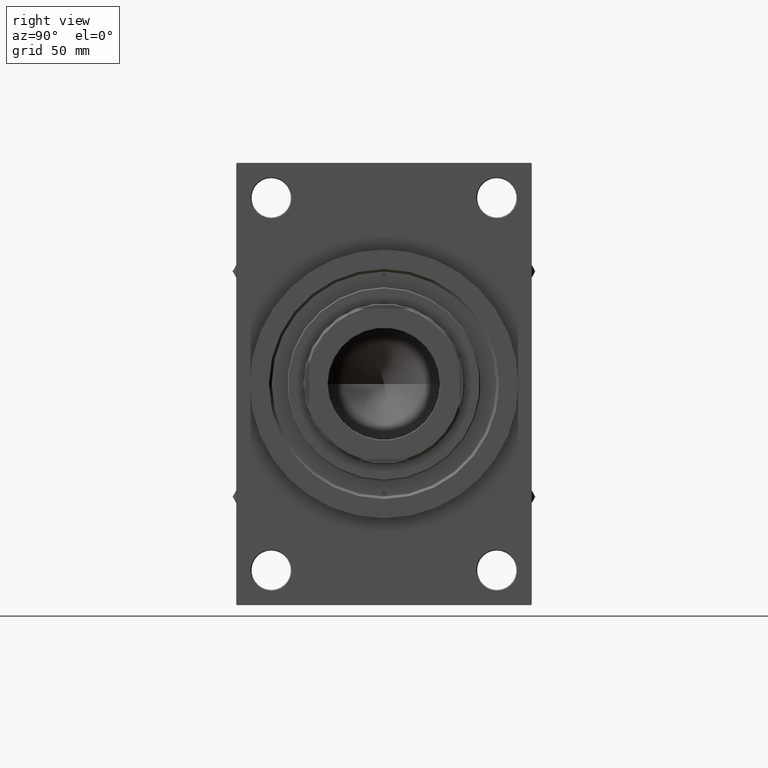
[diagram: clean part render]
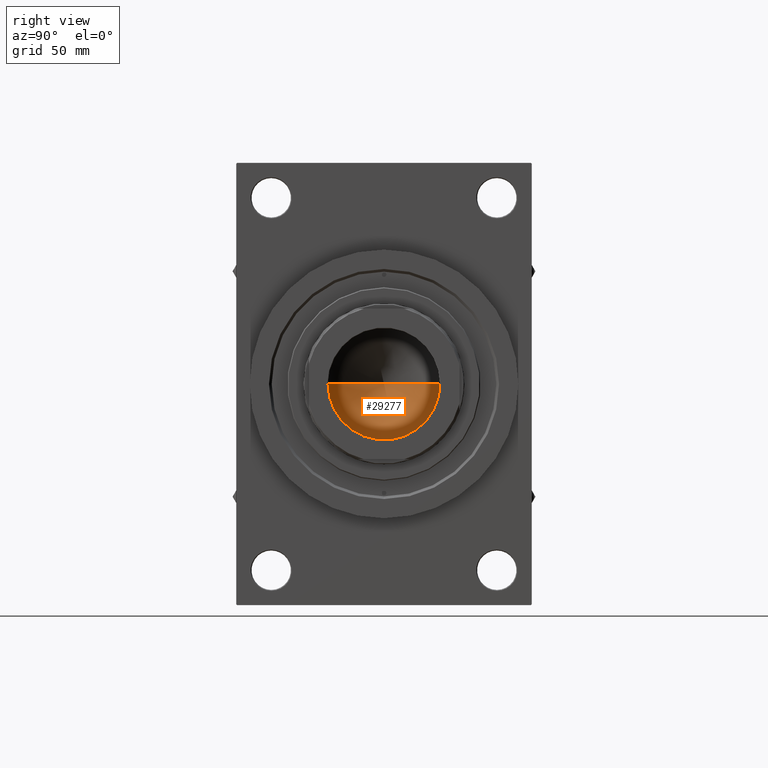
[diagram: same view with one face highlighted and labeled with its STEP entity id]
A machine part, right view. The second image highlights one B-rep face of the part: STEP entity #29277.
In plain terms, the highlighted conical surface has half-angle 59 deg.
Its self-contained STEP definition (entity closure, byte-faithful):
#2604 = ORIENTED_EDGE ( 'NONE', *, *, #11476, .T. ) ;
#2649 = VECTOR ( 'NONE', #4310, 1000.000000000000000 ) ;
#2798 = ORIENTED_EDGE ( 'NONE', *, *, #11866, .T. ) ;
#4310 = DIRECTION ( 'NONE',  ( 0.8571673007021118895, 0.000000000000000000, 0.5150380749100549327 ) ) ;
#5399 = AXIS2_PLACEMENT_3D ( 'NONE', #35051, #31174, #23907 ) ;
#6379 = CARTESIAN_POINT ( 'NONE',  ( -2.278004804806631044E-14, 0.000000000000000000, 88.22310565538870719 ) ) ;
#10887 = LINE ( 'NONE', #39519, #13173 ) ;
#10937 = CARTESIAN_POINT ( 'NONE',  ( 0.000000000000000000, 0.000000000000000000, 106.9999999999999858 ) ) ;
#11231 = CARTESIAN_POINT ( 'NONE',  ( 31.24999999999998579, 0.000000000000000000, 106.9999999999999858 ) ) ;
#11476 = EDGE_CURVE ( 'NONE', #43700, #20758, #44397, .T. ) ;
#11866 = EDGE_CURVE ( 'NONE', #40371, #43700, #15229, .T. ) ;
#13173 = VECTOR ( 'NONE', #36367, 1000.000000000000000 ) ;
#13455 = AXIS2_PLACEMENT_3D ( 'NONE', #10937, #47569, #14103 ) ;
#14103 = DIRECTION ( 'NONE',  ( 1.000000000000000000, 0.000000000000000000, 0.000000000000000000 ) ) ;
#15229 = LINE ( 'NONE', #34623, #2649 ) ;
#16380 = FACE_OUTER_BOUND ( 'NONE', #23698, .T. ) ;
#20758 = VERTEX_POINT ( 'NONE', #37887 ) ;
#21722 = ORIENTED_EDGE ( 'NONE', *, *, #33169, .F. ) ;
#23698 = EDGE_LOOP ( 'NONE', ( #21722, #2798, #2604 ) ) ;
#23907 = DIRECTION ( 'NONE',  ( 1.000000000000000000, 0.000000000000000000, 0.000000000000000000 ) ) ;
#29277 = ADVANCED_FACE ( 'NONE', ( #16380 ), #38705, .F. ) ;
#31174 = DIRECTION ( 'NONE',  ( -0.000000000000000000, -0.000000000000000000, 1.000000000000000000 ) ) ;
#33169 = EDGE_CURVE ( 'NONE', #40371, #20758, #10887, .T. ) ;
#34623 = CARTESIAN_POINT ( 'NONE',  ( 31.24999999999998579, 0.000000000000000000, 106.9999999999999858 ) ) ;
#35051 = CARTESIAN_POINT ( 'NONE',  ( 0.000000000000000000, 0.000000000000000000, 106.9999999999999858 ) ) ;
#36367 = DIRECTION ( 'NONE',  ( -0.8571673007021118895, 1.049727191138618079E-16, 0.5150380749100549327 ) ) ;
#37887 = CARTESIAN_POINT ( 'NONE',  ( -31.24999999999998579, 3.827021247335477324E-15, 106.9999999999999858 ) ) ;
#38705 = CONICAL_SURFACE ( 'NONE', #5399, 31.24999999999998579, 1.029744258676653645 ) ;
#39519 = CARTESIAN_POINT ( 'NONE',  ( -31.24999999999998579, 3.827021247335477324E-15, 106.9999999999999858 ) ) ;
#40371 = VERTEX_POINT ( 'NONE', #6379 ) ;
#43700 = VERTEX_POINT ( 'NONE', #11231 ) ;
#44397 = CIRCLE ( 'NONE', #13455, 31.24999999999998579 ) ;
#47569 = DIRECTION ( 'NONE',  ( -0.000000000000000000, -0.000000000000000000, 1.000000000000000000 ) ) ;